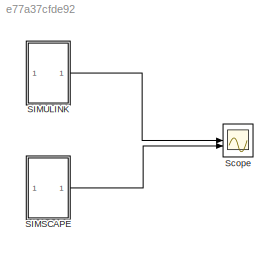
MODEL slx_e77a37cfde92
KIND model
CONFIG AbsTol = auto
CONFIG EnableMultiTasking = off
CONFIG FixedStep = 0.0001
CONFIG InitFcn = m = 10;\nr = 0.05;\nk = 100;
CONFIG MaxStep = auto
CONFIG MinStep = auto
CONFIG RelTol = 1e-3
CONFIG SampleTimeConstraint = Unconstrained
CONFIG SolverName = FixedStepAuto
CONFIG StartTime = 0.0
CONFIG StopTime = 10
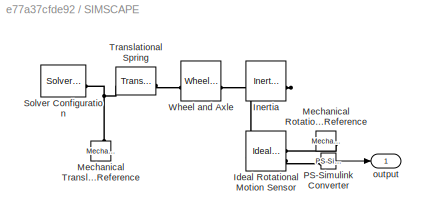
BLOCK [SubSystem] SIMSCAPE
BLOCK [Reference] SIMSCAPE/Ideal Rotational Motion Sensor  REF=fl_lib/Mechanical/Mechanical Sensors/Ideal Rotational
Motion Sensor
  SourceBlock = fl_lib/Mechanical/Mechanical Sensors/Ideal Rotational\nMotion Sensor
  SourceType = Ideal Rotational\nMotion Sensor
BLOCK [Reference] SIMSCAPE/Inertia  REF=fl_lib/Mechanical/Rotational Elements/Inertia
  NameLocation = top
  SourceBlock = fl_lib/Mechanical/Rotational Elements/Inertia
  SourceType = Inertia
BLOCK [Reference] SIMSCAPE/Mechanical Rotational Reference  REF=fl_lib/Mechanical/Rotational Elements/Mechanical
Rotational Reference
  NameLocation = top
  SourceBlock = fl_lib/Mechanical/Rotational Elements/Mechanical\nRotational Reference
  SourceType = Mechanical\nRotational Reference
BLOCK [Reference] SIMSCAPE/Mechanical Translational Reference  REF=fl_lib/Mechanical/Translational
Elements/Mechanical
Translational
Reference
  NameLocation = right
  SourceBlock = fl_lib/Mechanical/Translational\nElements/Mechanical\nTranslational\nReference
  SourceType = Mechanical\nTranslational\nReference
BLOCK [Reference] SIMSCAPE/PS-Simulink Converter  REF=nesl_utility/PS-Simulink
Converter
  SourceBlock = nesl_utility/PS-Simulink\nConverter
  SourceType = PS-Simulink\nConverter
BLOCK [Reference] SIMSCAPE/Solver Configuration  REF=nesl_utility/Solver
Configuration
  SourceBlock = nesl_utility/Solver\nConfiguration
  SourceType = Solver\nConfiguration
BLOCK [Reference] SIMSCAPE/Translational Spring  REF=fl_lib/Mechanical/Translational
Elements/Translational Spring
  SourceBlock = fl_lib/Mechanical/Translational\nElements/Translational Spring
  SourceType = Translational Spring
BLOCK [Reference] SIMSCAPE/Wheel and Axle  REF=fl_lib/Mechanical/Mechanisms/Wheel and Axle
  SourceBlock = fl_lib/Mechanical/Mechanisms/Wheel and Axle
  SourceType = Wheel and Axle
BLOCK [Outport] SIMSCAPE/output
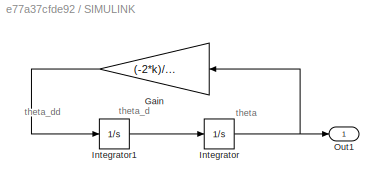
BLOCK [SubSystem] SIMULINK
BLOCK [Gain] SIMULINK/Gain
  Gain = (-2*k)/(3*m)
BLOCK [Integrator] SIMULINK/Integrator
BLOCK [Integrator] SIMULINK/Integrator1
  InitialCondition = 2
BLOCK [Outport] SIMULINK/Out1
BLOCK [Scope] Scope
  Floating = off
  NumInputPorts = 2
  ScopeSpecificationString = Simulink.scopes.TimeScopeBlockCfg('CurrentConfiguration', extmgr.ConfigurationSet(extmgr.Configuration('Core','General UI',true),extmgr.Configuration('Core','Source UI',true),extmgr.Configuration('Sources','WiredSimulink',true),extmgr.Configuration('Visuals','Time Domain',true,'SerializedDisplays',{struct('MinYLimReal','-0.96825','MaxYLimReal','0.96825','YLabelReal','','MinYLimMag','0.00000','MaxY...<+1737ch>
ANNOTATION SIMULINK: theta
ANNOTATION SIMULINK: theta_d
ANNOTATION SIMULINK: theta_dd
LINE SIMSCAPE/PS-Simulink Converter:1 -> SIMSCAPE/output:1
LINE SIMSCAPE:1 -> Scope:2
LINE SIMULINK/Gain:1 -> SIMULINK/Integrator1:1
LINE SIMULINK/Integrator1:1 -> SIMULINK/Integrator:1
NET SIMULINK/Integrator:1 -> SIMULINK/Gain:1, SIMULINK/Out1:1
LINE SIMULINK:1 -> Scope:1
PNET net1: SIMSCAPE/Ideal Rotational Motion Sensor:LConn1 -- SIMSCAPE/Inertia:LConn1 -- SIMSCAPE/Wheel and Axle:LConn1
PLINE SIMSCAPE/Ideal Rotational Motion Sensor:RConn1 -- SIMSCAPE/Mechanical Rotational Reference:LConn1
PLINE SIMSCAPE/Ideal Rotational Motion Sensor:RConn2 -- SIMSCAPE/PS-Simulink Converter:LConn1
PNET net2: SIMSCAPE/Mechanical Translational Reference:LConn1 -- SIMSCAPE/Solver Configuration:RConn1 -- SIMSCAPE/Translational Spring:RConn1
PLINE SIMSCAPE/Translational Spring:LConn1 -- SIMSCAPE/Wheel and Axle:RConn1
note: NET lines group one-source signal fan-out (src -> all destinations, sorted); 1:1 wires keep LINE; PNET lines group multi-terminal physical nets as a canonical sorted terminal list (undirected conserving connections); 2-terminal nets keep the pairwise PLINE form
